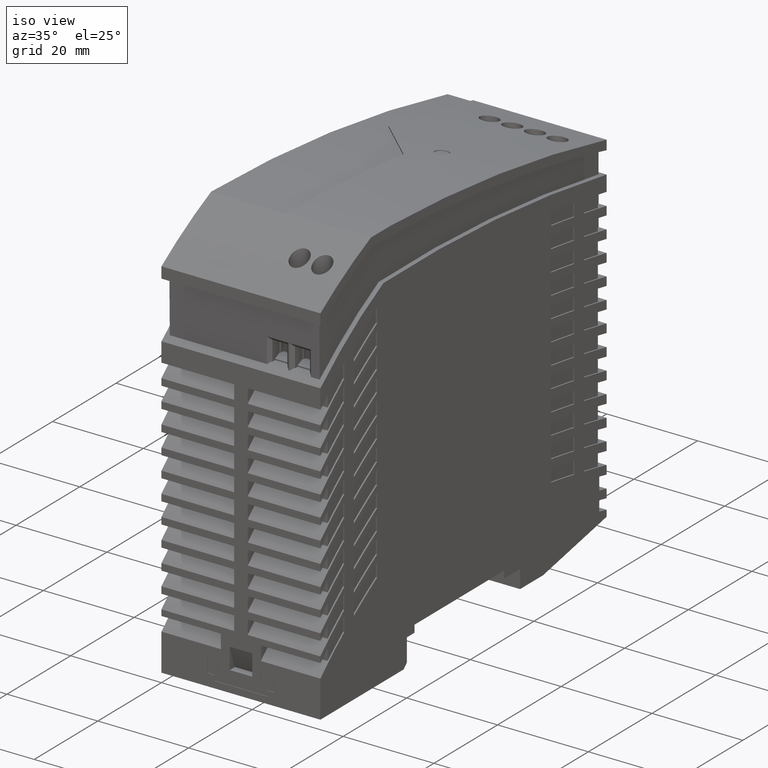
[diagram: clean part render]
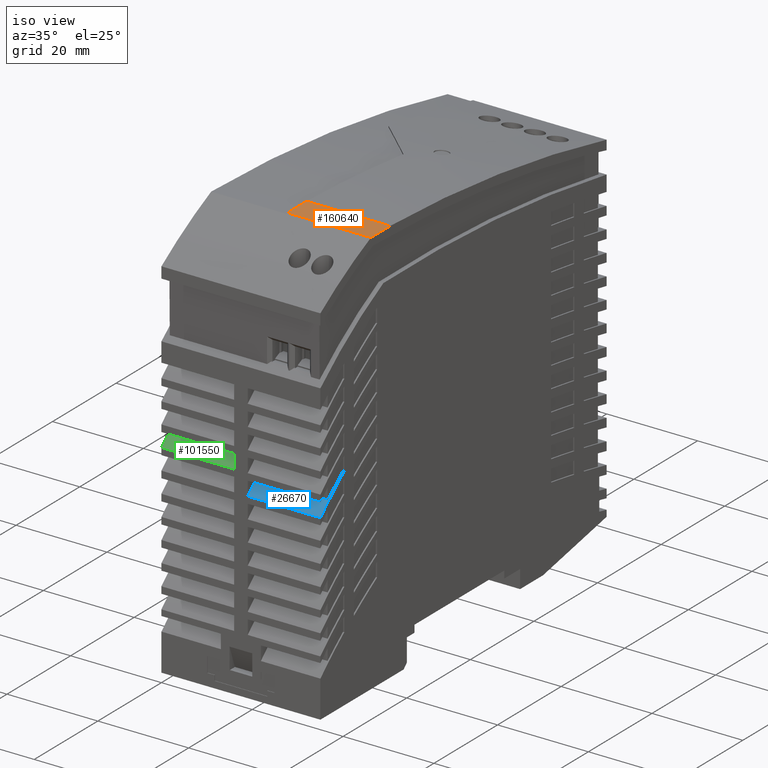
[diagram: same view with three faces highlighted in distinct colors, each labeled with its STEP entity id]
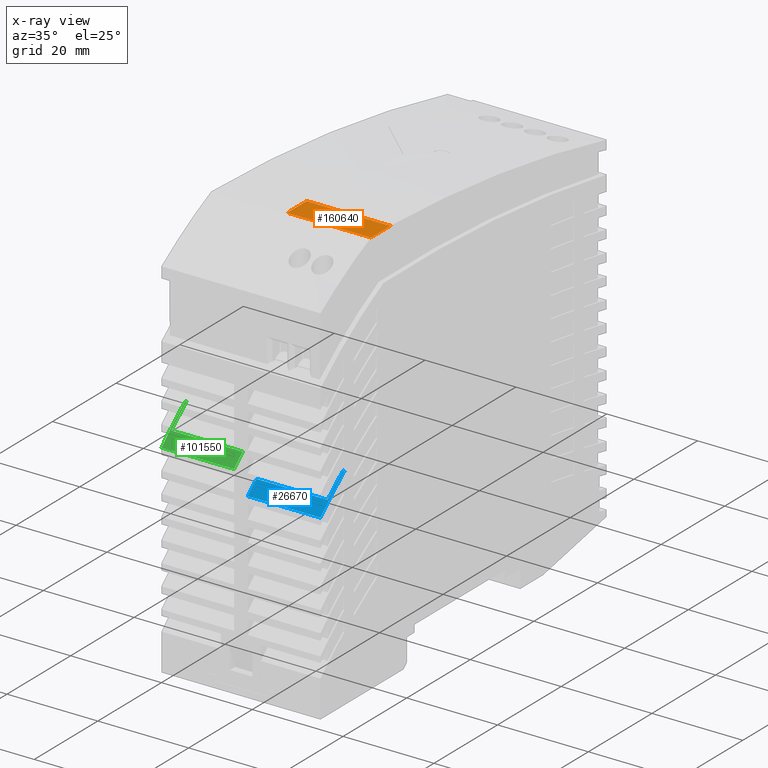
[diagram: x-ray of the same camera — body ghosted, the three highlighted faces saturated]
A machine part, iso view with three faces highlighted in distinct colors.
The next image is the same camera in x-ray (body ghosted, the three faces saturated) — at least one of them is partly hidden behind the body in this view.
Their STEP definitions:

[orange] entity #160640 — the highlighted planar face has unit normal (-0, -0, -1).
#33790=CARTESIAN_POINT('',(-29.0910272099849,89.8990722762113,13.5));
#33800=VERTEX_POINT('',#33790);
#33850=CARTESIAN_POINT('',(0.198476392632898,89.8990722762113,13.5));
#33860=DIRECTION('',(-1.,0.,0.));
#33870=VECTOR('',#33860,1.);
#33880=LINE('',#33850,#33870);
#33890=CARTESIAN_POINT('',(-23.0409203779481,89.8990722762113,13.5));
#33900=VERTEX_POINT('',#33890);
#33910=EDGE_CURVE('',#33900,#33800,#33880,.T.);
#158210=CARTESIAN_POINT('',(-29.0910272099849,89.8990722762113,-4.9));
#158220=VERTEX_POINT('',#158210);
#158250=CARTESIAN_POINT('',(-29.0910272099849,89.8990722762113,1.));
#158260=DIRECTION('',(0.,0.,-1.));
#158270=VECTOR('',#158260,1.);
#158280=LINE('',#158250,#158270);
#158290=EDGE_CURVE('',#33800,#158220,#158280,.T.);
#160410=CARTESIAN_POINT('',(-29.0910272099849,89.8990722762113,1.));
#160420=DIRECTION('',(-0.,-1.,-0.));
#160430=DIRECTION('',(-1.,0.,0.));
#160440=AXIS2_PLACEMENT_3D('',#160410,#160420,#160430);
#160450=PLANE('',#160440);
#160460=CARTESIAN_POINT('',(-23.0409203779481,89.8990722762113,1.));
#160470=DIRECTION('',(0.,0.,-1.));
#160480=VECTOR('',#160470,1.);
#160490=LINE('',#160460,#160480);
#160500=CARTESIAN_POINT('',(-23.0409203779482,89.8990722762115,-4.9));
#160510=VERTEX_POINT('',#160500);
#160520=EDGE_CURVE('',#33900,#160510,#160490,.T.);
#160530=ORIENTED_EDGE('',*,*,#160520,.T.);
#160540=ORIENTED_EDGE('',*,*,#33910,.F.);
#160550=ORIENTED_EDGE('',*,*,#158290,.F.);
#160560=CARTESIAN_POINT('',(0.,89.8990722762113,-4.9));
#160570=DIRECTION('',(1.,0.,0.));
#160580=VECTOR('',#160570,1.);
#160590=LINE('',#160560,#160580);
#160600=EDGE_CURVE('',#158220,#160510,#160590,.T.);
#160610=ORIENTED_EDGE('',*,*,#160600,.F.);
#160620=EDGE_LOOP('',(#160610,#160550,#160540,#160530));
#160630=FACE_OUTER_BOUND('',#160620,.T.);
#160640=ADVANCED_FACE('',(#160630),#160450,.F.);

[blue] entity #26670 — the highlighted cylindrical surface (partial cylindrical patch) has radius 111 mm, axis along (1, 0, 0).
#6830=CARTESIAN_POINT('',(-45.0015236073532,40.2196322079583,-2.5));
#6840=VERTEX_POINT('',#6830);
#6870=CARTESIAN_POINT('',(-45.0015236073532,40.2196322079583,-12.5));
#6880=DIRECTION('',(0.,0.,1.));
#6890=VECTOR('',#6880,1.);
#6900=LINE('',#6870,#6890);
#6910=CARTESIAN_POINT('',(-45.0015236073532,40.2196322079583,13.5));
#6920=VERTEX_POINT('',#6910);
#6930=EDGE_CURVE('',#6840,#6920,#6900,.T.);
#26180=CARTESIAN_POINT('',(30.4869845880891,-41.1590205851957,-12.5));
#26190=DIRECTION('',(0.,0.,1.));
#26200=DIRECTION('',(0.,1.,0.));
#26210=AXIS2_PLACEMENT_3D('',#26180,#26190,#26200);
#26220=CYLINDRICAL_SURFACE('',#26210,111.000000000009);
#26230=ORIENTED_EDGE('',*,*,#6930,.T.);
#26240=CARTESIAN_POINT('',(30.4869845880891,-41.1590205851957,-2.5));
#26250=DIRECTION('',(0.,0.,1.));
#26260=DIRECTION('',(0.,1.,0.));
#26270=AXIS2_PLACEMENT_3D('',#26240,#26250,#26260);
#26280=CIRCLE('',#26270,111.000000000009);
#26290=CARTESIAN_POINT('',(-42.3015236073671,42.6433246963182,-2.5));
#26300=VERTEX_POINT('',#26290);
#26310=EDGE_CURVE('',#26300,#6840,#26280,.T.);
#26320=ORIENTED_EDGE('',*,*,#26310,.T.);
#26330=CARTESIAN_POINT('',(-42.3015236073671,42.6433246963182,-12.5));
#26340=DIRECTION('',(0.,0.,1.));
#26350=VECTOR('',#26340,1.);
#26360=LINE('',#26330,#26350);
#26370=CARTESIAN_POINT('',(-42.3015236073671,42.6433246963182,13.2));
#26380=VERTEX_POINT('',#26370);
#26390=EDGE_CURVE('',#26300,#26380,#26360,.T.);
#26400=ORIENTED_EDGE('',*,*,#26390,.F.);
#26410=CARTESIAN_POINT('',(30.4869845880891,-41.1590205851956,13.2));
#26420=DIRECTION('',(0.,0.,1.));
#26430=DIRECTION('',(0.,1.,0.));
#26440=AXIS2_PLACEMENT_3D('',#26410,#26420,#26430);
#26450=CIRCLE('',#26440,111.000000000009);
#26460=CARTESIAN_POINT('',(-37.4715236073768,46.6056714261642,13.2));
#26470=VERTEX_POINT('',#26460);
#26480=EDGE_CURVE('',#26470,#26380,#26450,.T.);
#26490=ORIENTED_EDGE('',*,*,#26480,.T.);
#26500=CARTESIAN_POINT('',(-37.4715236073769,46.6056714261642,13.2));
#26510=DIRECTION('',(0.,0.,1.));
#26520=VECTOR('',#26510,1.);
#26530=LINE('',#26500,#26520);
#26540=CARTESIAN_POINT('',(-37.4715236073768,46.6056714261642,13.5));
#26550=VERTEX_POINT('',#26540);
#26560=EDGE_CURVE('',#26470,#26550,#26530,.T.);
#26570=ORIENTED_EDGE('',*,*,#26560,.F.);
#26580=CARTESIAN_POINT('',(30.4869845880891,-41.1590205851957,13.5));
#26590=DIRECTION('',(0.,0.,1.));
#26600=DIRECTION('',(0.,1.,0.));
#26610=AXIS2_PLACEMENT_3D('',#26580,#26590,#26600);
#26620=CIRCLE('',#26610,111.000000000009);
#26630=EDGE_CURVE('',#26550,#6920,#26620,.T.);
#26640=ORIENTED_EDGE('',*,*,#26630,.F.);
#26650=EDGE_LOOP('',(#26640,#26570,#26490,#26400,#26320,#26230));
#26660=FACE_OUTER_BOUND('',#26650,.T.);
#26670=ADVANCED_FACE('',(#26660),#26220,.T.);

[green] entity #101550 — the highlighted cylindrical surface (partial cylindrical patch) has radius 111 mm, axis along (1, 0, 0).
#10860=CARTESIAN_POINT('',(-45.0015236073532,44.8196322079584,-21.5));
#10870=VERTEX_POINT('',#10860);
#10900=CARTESIAN_POINT('',(-45.0015236073532,44.8196322079584,-47.45));
#10910=DIRECTION('',(0.,0.,1.));
#10920=VECTOR('',#10910,1.);
#10930=LINE('',#10900,#10920);
#10940=CARTESIAN_POINT('',(-45.0015236073532,44.8196322079584,-5.5));
#10950=VERTEX_POINT('',#10940);
#10960=EDGE_CURVE('',#10870,#10950,#10930,.T.);
#61040=CARTESIAN_POINT('',(-37.4715236073769,51.2056714261642,-21.2));
#61050=VERTEX_POINT('',#61040);
#61210=CARTESIAN_POINT('',(-42.3015236073671,47.2433246963184,-21.2));
#61220=VERTEX_POINT('',#61210);
#61250=CARTESIAN_POINT('',(30.4869845880975,-36.5590205852057,-21.2));
#61260=DIRECTION('',(0.,0.,1.));
#61270=DIRECTION('',(0.,1.,0.));
#61280=AXIS2_PLACEMENT_3D('',#61250,#61260,#61270);
#61290=CIRCLE('',#61280,111.000000000022);
#61300=EDGE_CURVE('',#61050,#61220,#61290,.T.);
#79760=CARTESIAN_POINT('',(-42.3015236073671,47.2433246963184,-5.5));
#79770=VERTEX_POINT('',#79760);
#79800=CARTESIAN_POINT('',(-42.3015236073671,47.2433246963184,-53.7));
#79810=DIRECTION('',(0.,0.,-1.));
#79820=VECTOR('',#79810,1.);
#79830=LINE('',#79800,#79820);
#79840=EDGE_CURVE('',#79770,#61220,#79830,.T.);
#101230=CARTESIAN_POINT('',(30.4869845880638,-36.5590205851661,-47.45));
#101240=DIRECTION('',(0.,0.,1.));
#101250=DIRECTION('',(0.,1.,0.));
#101260=AXIS2_PLACEMENT_3D('',#101230,#101240,#101250);
#101270=CYLINDRICAL_SURFACE('',#101260,110.999999999971);
#101280=CARTESIAN_POINT('',(30.4869845880638,-36.5590205851661,-21.5));
#101290=DIRECTION('',(0.,0.,1.));
#101300=DIRECTION('',(0.,1.,0.));
#101310=AXIS2_PLACEMENT_3D('',#101280,#101290,#101300);
#101320=CIRCLE('',#101310,110.999999999971);
#101330=CARTESIAN_POINT('',(-37.4715236073769,51.2056714261643,-21.5));
#101340=VERTEX_POINT('',#101330);
#101350=EDGE_CURVE('',#101340,#10870,#101320,.T.);
#101360=ORIENTED_EDGE('',*,*,#101350,.T.);
#101370=CARTESIAN_POINT('',(-37.4715236073769,51.2056714261642,-21.5));
#101380=DIRECTION('',(0.,0.,1.));
#101390=VECTOR('',#101380,1.);
#101400=LINE('',#101370,#101390);
#101410=EDGE_CURVE('',#101340,#61050,#101400,.T.);
#101420=ORIENTED_EDGE('',*,*,#101410,.F.);
#101430=ORIENTED_EDGE('',*,*,#61300,.F.);
#101440=ORIENTED_EDGE('',*,*,#79840,.T.);
#101450=CARTESIAN_POINT('',(30.4869845880638,-36.5590205851661,-5.5));
#101460=DIRECTION('',(0.,0.,1.));
#101470=DIRECTION('',(0.,1.,0.));
#101480=AXIS2_PLACEMENT_3D('',#101450,#101460,#101470);
#101490=CIRCLE('',#101480,110.999999999971);
#101500=EDGE_CURVE('',#79770,#10950,#101490,.T.);
#101510=ORIENTED_EDGE('',*,*,#101500,.F.);
#101520=ORIENTED_EDGE('',*,*,#10960,.T.);
#101530=EDGE_LOOP('',(#101520,#101510,#101440,#101430,#101420,#101360));
#101540=FACE_OUTER_BOUND('',#101530,.T.);
#101550=ADVANCED_FACE('',(#101540),#101270,.T.);